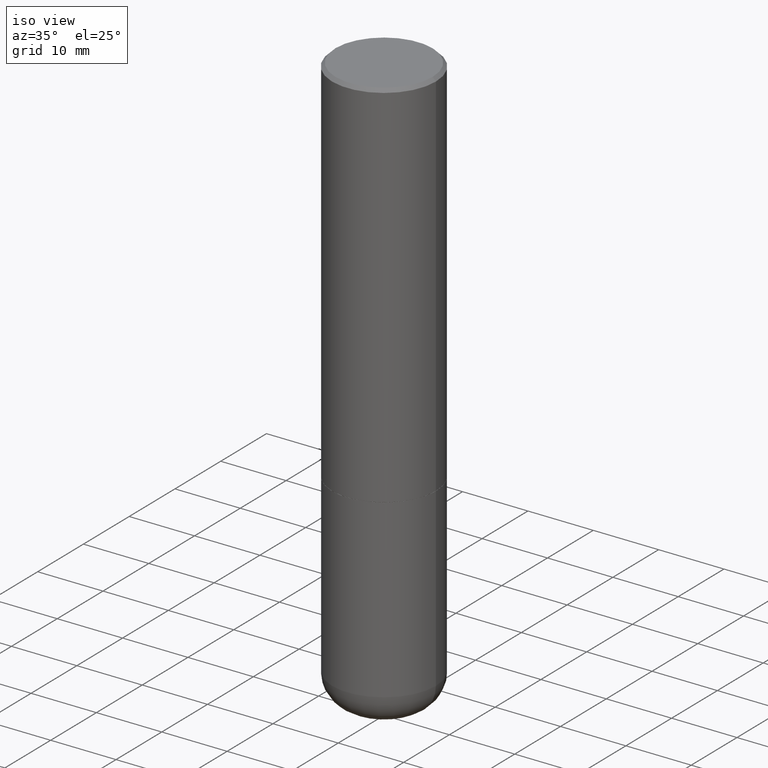
[diagram: clean part render]
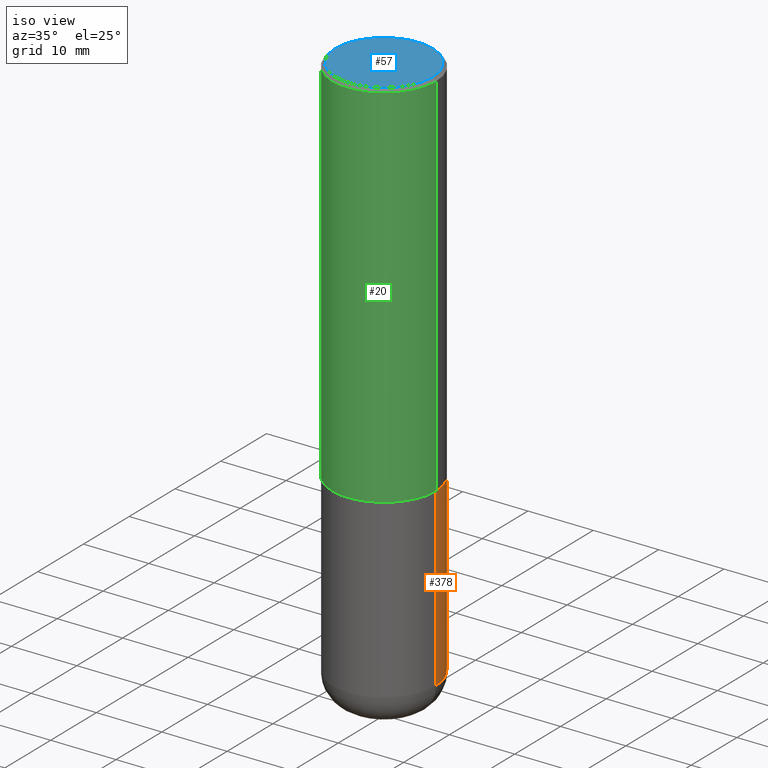
[diagram: same view with three faces highlighted in distinct colors, each labeled with its STEP entity id]
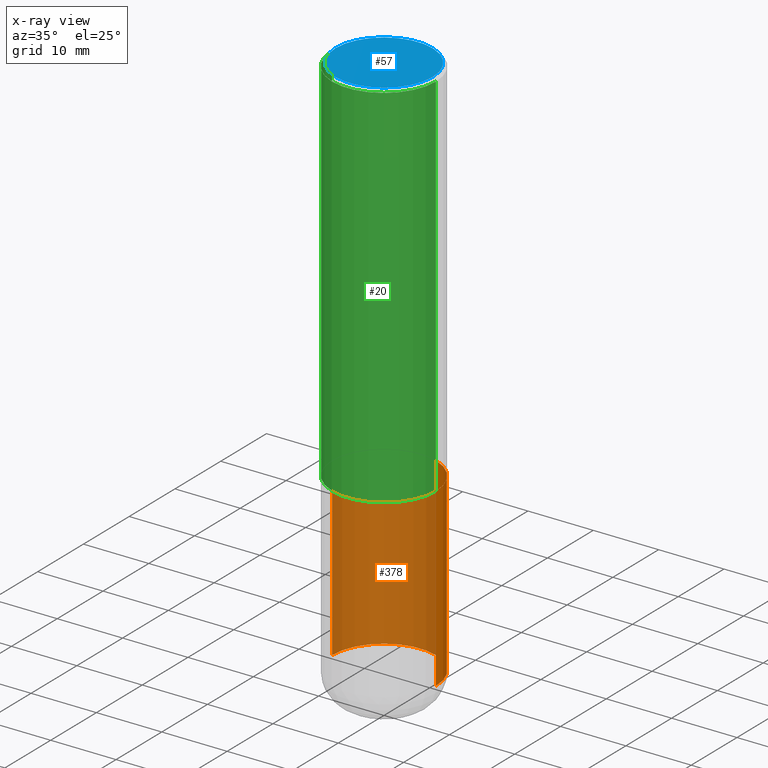
[diagram: x-ray of the same camera — body ghosted, the three highlighted faces saturated]
A machine part, iso view with three faces highlighted in distinct colors.
The next image is the same camera in x-ray (body ghosted, the three faces saturated) — at least one of them is partly hidden behind the body in this view.
Their STEP definitions:

[orange] entity #378 — the highlighted cylindrical surface (partial cylindrical patch) has radius 7.9375 mm, axis along (-0, 0, 1).
#2 = DIRECTION ( 'NONE',  ( -2.445468806185136877E-29, 3.491481338843145188E-15, 1.000000000000000000 ) ) ;
#6 = CYLINDRICAL_SURFACE ( 'NONE', #142, 0.3125000000000000000 ) ;
#28 = CIRCLE ( 'NONE', #283, 0.3125000000000000000 ) ;
#30 = DIRECTION ( 'NONE',  ( 1.000000000000000000, -6.982962677686266711E-15, 4.876176775795936353E-29 ) ) ;
#35 = EDGE_CURVE ( 'NONE', #100, #272, #333, .T. ) ;
#38 = LINE ( 'NONE', #228, #332 ) ;
#43 = CARTESIAN_POINT ( 'NONE',  ( 0.3125000000000000000, -2.182175836776958347E-15, 1.523805242436230075E-29 ) ) ;
#59 = CIRCLE ( 'NONE', #353, 0.3125000000000000000 ) ;
#60 = DIRECTION ( 'NONE',  ( -2.445468806185136597E-29, 3.491481338843145583E-15, 1.000000000000000000 ) ) ;
#61 = DIRECTION ( 'NONE',  ( 1.000000000000000000, -6.982962677686269077E-15, 0.000000000000000000 ) ) ;
#99 = CARTESIAN_POINT ( 'NONE',  ( 8.094501748472800969E-29, -1.155680323157081116E-14, -3.310000000000000053 ) ) ;
#100 = VERTEX_POINT ( 'NONE', #150 ) ;
#115 = VECTOR ( 'NONE', #164, 39.37007874015748143 ) ;
#132 = CARTESIAN_POINT ( 'NONE',  ( 0.000000000000000000, 0.000000000000000000, 0.000000000000000000 ) ) ;
#137 = VERTEX_POINT ( 'NONE', #212 ) ;
#142 = AXIS2_PLACEMENT_3D ( 'NONE', #132, #385, #30 ) ;
#147 = DIRECTION ( 'NONE',  ( -2.445468806185136597E-29, 3.491481338843145583E-15, 1.000000000000000000 ) ) ;
#150 = CARTESIAN_POINT ( 'NONE',  ( 0.3125000000000000000, -1.373897906834776951E-14, -3.310000000000000053 ) ) ;
#164 = DIRECTION ( 'NONE',  ( -2.445468806185136877E-29, 3.491481338843145188E-15, 1.000000000000000000 ) ) ;
#178 = DIRECTION ( 'NONE',  ( 1.000000000000000000, -6.982962677686269077E-15, 0.000000000000000000 ) ) ;
#187 = VERTEX_POINT ( 'NONE', #318 ) ;
#205 = EDGE_CURVE ( 'NONE', #272, #187, #28, .T. ) ;
#209 = CARTESIAN_POINT ( 'NONE',  ( 5.502304813916556222E-29, -7.855833012397076871E-15, -2.249999999999999556 ) ) ;
#212 = CARTESIAN_POINT ( 'NONE',  ( -0.3125000000000000000, -9.336357182320498084E-15, -3.310000000000000053 ) ) ;
#221 = EDGE_LOOP ( 'NONE', ( #406, #398, #388, #396 ) ) ;
#228 = CARTESIAN_POINT ( 'NONE',  ( -0.3125000000000000000, 2.220446049250313081E-15, -1.537167215704658232E-29 ) ) ;
#272 = VERTEX_POINT ( 'NONE', #391 ) ;
#283 = AXIS2_PLACEMENT_3D ( 'NONE', #209, #147, #178 ) ;
#318 = CARTESIAN_POINT ( 'NONE',  ( -0.3125000000000000000, -7.485872072733631726E-15, -2.249999999999999556 ) ) ;
#329 = FACE_OUTER_BOUND ( 'NONE', #221, .T. ) ;
#332 = VECTOR ( 'NONE', #2, 39.37007874015748143 ) ;
#333 = LINE ( 'NONE', #43, #115 ) ;
#335 = EDGE_CURVE ( 'NONE', #100, #137, #59, .T. ) ;
#353 = AXIS2_PLACEMENT_3D ( 'NONE', #99, #60, #61 ) ;
#358 = EDGE_CURVE ( 'NONE', #137, #187, #38, .T. ) ;
#378 = ADVANCED_FACE ( 'NONE', ( #329 ), #6, .T. ) ;
#385 = DIRECTION ( 'NONE',  ( -2.445468806185136597E-29, 3.491481338843145583E-15, 1.000000000000000000 ) ) ;
#388 = ORIENTED_EDGE ( 'NONE', *, *, #205, .F. ) ;
#391 = CARTESIAN_POINT ( 'NONE',  ( 0.3125000000000000000, -1.003800884917403522E-14, -2.249999999999999556 ) ) ;
#396 = ORIENTED_EDGE ( 'NONE', *, *, #35, .F. ) ;
#398 = ORIENTED_EDGE ( 'NONE', *, *, #358, .T. ) ;
#406 = ORIENTED_EDGE ( 'NONE', *, *, #335, .T. ) ;

[blue] entity #57 — the highlighted planar face has unit normal (0, -0, -1).
#3 = DIRECTION ( 'NONE',  ( 1.000000000000000000, -6.982962677686266711E-15, 4.878659607425508343E-29 ) ) ;
#5 = CIRCLE ( 'NONE', #359, 0.2924999999999997047 ) ;
#19 = CARTESIAN_POINT ( 'NONE',  ( 0.2924999999999997047, -2.110215457714318353E-15, 1.323238871931272789E-16 ) ) ;
#57 = ADVANCED_FACE ( 'NONE', ( #134 ), #266, .F. ) ;
#71 = VERTEX_POINT ( 'NONE', #19 ) ;
#76 = EDGE_LOOP ( 'NONE', ( #208, #79 ) ) ;
#79 = ORIENTED_EDGE ( 'NONE', *, *, #270, .T. ) ;
#82 = DIRECTION ( 'NONE',  ( 2.438088387897960049E-29, -3.491481338843145188E-15, -1.000000000000000000 ) ) ;
#134 = FACE_OUTER_BOUND ( 'NONE', #76, .T. ) ;
#157 = CARTESIAN_POINT ( 'NONE',  ( -3.235939384439181382E-45, 4.620063828179386567E-31, 1.323238871931127589E-16 ) ) ;
#158 = AXIS2_PLACEMENT_3D ( 'NONE', #400, #82, #216 ) ;
#197 = AXIS2_PLACEMENT_3D ( 'NONE', #219, #416, #3 ) ;
#208 = ORIENTED_EDGE ( 'NONE', *, *, #350, .T. ) ;
#216 = DIRECTION ( 'NONE',  ( -1.000000000000000000, 6.982962677686265922E-15, -4.876176775795935793E-29 ) ) ;
#219 = CARTESIAN_POINT ( 'NONE',  ( -3.235939384439181382E-45, 4.620063828179386567E-31, 1.323238871931127589E-16 ) ) ;
#259 = DIRECTION ( 'NONE',  ( -2.445468806185136597E-29, 3.491481338843145583E-15, 1.000000000000000000 ) ) ;
#260 = CARTESIAN_POINT ( 'NONE',  ( -0.2924999999999997047, 2.077431396611663005E-15, 1.323238871930983375E-16 ) ) ;
#261 = VERTEX_POINT ( 'NONE', #260 ) ;
#266 = PLANE ( 'NONE',  #158 ) ;
#270 = EDGE_CURVE ( 'NONE', #71, #261, #319, .T. ) ;
#294 = DIRECTION ( 'NONE',  ( 1.000000000000000000, -6.982962677686266711E-15, 4.878659607425508343E-29 ) ) ;
#319 = CIRCLE ( 'NONE', #197, 0.2924999999999997047 ) ;
#350 = EDGE_CURVE ( 'NONE', #261, #71, #5, .T. ) ;
#359 = AXIS2_PLACEMENT_3D ( 'NONE', #157, #259, #294 ) ;
#400 = CARTESIAN_POINT ( 'NONE',  ( 2.042516583223230567E-15, 0.2924999999999997047, -9.550963480150628116E-16 ) ) ;
#416 = DIRECTION ( 'NONE',  ( -2.445468806185136597E-29, 3.491481338843145583E-15, 1.000000000000000000 ) ) ;

[green] entity #20 — the highlighted cylindrical surface (partial cylindrical patch) has radius 7.9375 mm, axis along (-0, 0, 1).
#9 = EDGE_LOOP ( 'NONE', ( #299, #68, #97, #269 ) ) ;
#20 = ADVANCED_FACE ( 'NONE', ( #51 ), #373, .T. ) ;
#24 = DIRECTION ( 'NONE',  ( 1.000000000000000000, -6.982962677686266711E-15, 0.000000000000000000 ) ) ;
#25 = CARTESIAN_POINT ( 'NONE',  ( 0.3124999999999998890, -2.213735251080466123E-15, -0.02000000000000006981 ) ) ;
#50 = LINE ( 'NONE', #106, #394 ) ;
#51 = FACE_OUTER_BOUND ( 'NONE', #9, .T. ) ;
#54 = DIRECTION ( 'NONE',  ( 1.000000000000000000, -6.982962677686266711E-15, 0.000000000000000000 ) ) ;
#56 = DIRECTION ( 'NONE',  ( -2.445468806185136597E-29, 3.491481338843145583E-15, 1.000000000000000000 ) ) ;
#68 = ORIENTED_EDGE ( 'NONE', *, *, #105, .T. ) ;
#74 = VERTEX_POINT ( 'NONE', #25 ) ;
#77 = CIRCLE ( 'NONE', #204, 0.3124999999999998890 ) ;
#84 = CARTESIAN_POINT ( 'NONE',  ( 0.3125000000000002220, -1.003451736783519379E-14, -2.248999999999999666 ) ) ;
#97 = ORIENTED_EDGE ( 'NONE', *, *, #281, .T. ) ;
#103 = AXIS2_PLACEMENT_3D ( 'NONE', #175, #141, #196 ) ;
#105 = EDGE_CURVE ( 'NONE', #402, #107, #214, .T. ) ;
#106 = CARTESIAN_POINT ( 'NONE',  ( -0.3125000000000000000, 2.220446049250313081E-15, -1.537167215704658232E-29 ) ) ;
#107 = VERTEX_POINT ( 'NONE', #84 ) ;
#111 = VERTEX_POINT ( 'NONE', #379 ) ;
#112 = CARTESIAN_POINT ( 'NONE',  ( 4.890937612370289799E-31, -6.982962677686315028E-17, -0.02000000000000006981 ) ) ;
#141 = DIRECTION ( 'NONE',  ( -2.445468806185136597E-29, 3.491481338843145583E-15, 1.000000000000000000 ) ) ;
#155 = DIRECTION ( 'NONE',  ( -2.445468806185136877E-29, 3.491481338843145188E-15, 1.000000000000000000 ) ) ;
#175 = CARTESIAN_POINT ( 'NONE',  ( 0.000000000000000000, 0.000000000000000000, 0.000000000000000000 ) ) ;
#179 = EDGE_CURVE ( 'NONE', #111, #74, #77, .T. ) ;
#182 = VECTOR ( 'NONE', #155, 39.37007874015748143 ) ;
#188 = AXIS2_PLACEMENT_3D ( 'NONE', #411, #248, #54 ) ;
#193 = CARTESIAN_POINT ( 'NONE',  ( 0.3125000000000000000, -2.182175836776958347E-15, 1.523805242436230075E-29 ) ) ;
#196 = DIRECTION ( 'NONE',  ( 1.000000000000000000, -6.982962677686266711E-15, 4.876176775795936353E-29 ) ) ;
#202 = CARTESIAN_POINT ( 'NONE',  ( -0.3125000000000002220, -1.740639529667230767E-15, -2.248999999999999666 ) ) ;
#204 = AXIS2_PLACEMENT_3D ( 'NONE', #112, #56, #24 ) ;
#214 = CIRCLE ( 'NONE', #188, 0.3125000000000002220 ) ;
#248 = DIRECTION ( 'NONE',  ( -2.445468806185136597E-29, 3.491481338843145583E-15, 1.000000000000000000 ) ) ;
#267 = DIRECTION ( 'NONE',  ( -2.445468806185136877E-29, 3.491481338843145188E-15, 1.000000000000000000 ) ) ;
#269 = ORIENTED_EDGE ( 'NONE', *, *, #179, .F. ) ;
#281 = EDGE_CURVE ( 'NONE', #107, #74, #387, .T. ) ;
#299 = ORIENTED_EDGE ( 'NONE', *, *, #410, .F. ) ;
#373 = CYLINDRICAL_SURFACE ( 'NONE', #103, 0.3125000000000000000 ) ;
#379 = CARTESIAN_POINT ( 'NONE',  ( -0.3124999999999998890, 2.112346210000094260E-15, -0.02000000000000006981 ) ) ;
#387 = LINE ( 'NONE', #193, #182 ) ;
#394 = VECTOR ( 'NONE', #267, 39.37007874015748143 ) ;
#402 = VERTEX_POINT ( 'NONE', #202 ) ;
#410 = EDGE_CURVE ( 'NONE', #402, #111, #50, .T. ) ;
#411 = CARTESIAN_POINT ( 'NONE',  ( 5.499859345110371740E-29, -7.852341531058233864E-15, -2.248999999999999666 ) ) ;